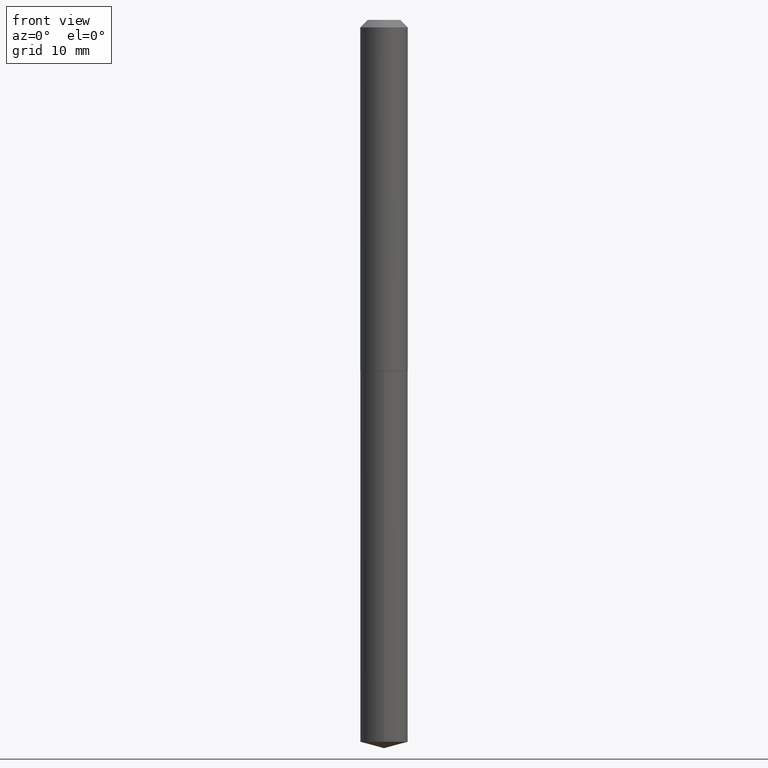
[diagram: clean part render]
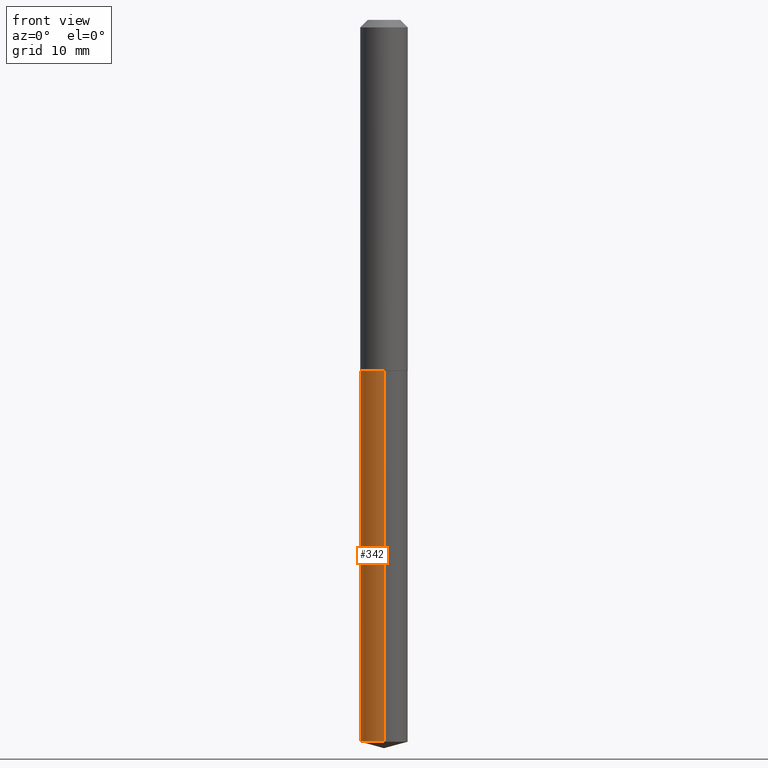
[diagram: same view with one face highlighted and labeled with its STEP entity id]
A machine part, front view. The second image highlights one B-rep face of the part: STEP entity #342.
In plain terms, the highlighted cylindrical surface (edge-blend (fillet) strip) has radius 2.4892 mm, axis along (-0, 0, 1).
Its self-contained STEP definition (entity closure, byte-faithful):
#11 = CIRCLE ( 'NONE', #66, 0.09800000000000003153 ) ;
#19 = DIRECTION ( 'NONE',  ( -6.982962677686266711E-15, -1.000000000000000000, 5.575199987069923245E-15 ) ) ;
#21 = DIRECTION ( 'NONE',  ( -2.433234783918762337E-29, 3.509001155045898110E-15, 1.000000000000000000 ) ) ;
#25 = CARTESIAN_POINT ( 'NONE',  ( 3.536147893743707559E-29, -5.048682015967188692E-15, -1.446000000000000174 ) ) ;
#40 = VECTOR ( 'NONE', #335, 39.37007874015748143 ) ;
#44 = LINE ( 'NONE', #354, #254 ) ;
#48 = CARTESIAN_POINT ( 'NONE',  ( 3.536147893743707559E-29, -5.048682015967188692E-15, -1.446000000000000174 ) ) ;
#66 = AXIS2_PLACEMENT_3D ( 'NONE', #388, #381, #19 ) ;
#79 = CYLINDRICAL_SURFACE ( 'NONE', #298, 0.09800000000000001765 ) ;
#104 = VERTEX_POINT ( 'NONE', #338 ) ;
#130 = LINE ( 'NONE', #215, #40 ) ;
#141 = ORIENTED_EDGE ( 'NONE', *, *, #333, .T. ) ;
#147 = ORIENTED_EDGE ( 'NONE', *, *, #260, .F. ) ;
#158 = VERTEX_POINT ( 'NONE', #247 ) ;
#168 = EDGE_CURVE ( 'NONE', #207, #104, #130, .T. ) ;
#195 = EDGE_CURVE ( 'NONE', #390, #158, #44, .T. ) ;
#198 = DIRECTION ( 'NONE',  ( -2.433234783918762337E-29, 3.509001155045898110E-15, 1.000000000000000000 ) ) ;
#202 = DIRECTION ( 'NONE',  ( -2.433234783918762337E-29, 3.509001155045898110E-15, 1.000000000000000000 ) ) ;
#207 = VERTEX_POINT ( 'NONE', #343 ) ;
#214 = EDGE_LOOP ( 'NONE', ( #328, #141, #313, #147 ) ) ;
#215 = CARTESIAN_POINT ( 'NONE',  ( -6.843303424132188479E-16, -0.09800000000000506917, -1.445999999999999730 ) ) ;
#217 = AXIS2_PLACEMENT_3D ( 'NONE', #25, #198, #324 ) ;
#225 = FACE_OUTER_BOUND ( 'NONE', #214, .T. ) ;
#247 = CARTESIAN_POINT ( 'NONE',  ( 6.963318810449712772E-16, 0.09799999999999495226, -1.446000000000000396 ) ) ;
#254 = VECTOR ( 'NONE', #202, 39.37007874015748143 ) ;
#255 = DIRECTION ( 'NONE',  ( -6.982962677686265922E-15, -1.000000000000000000, 2.787599993534962017E-15 ) ) ;
#260 = EDGE_CURVE ( 'NONE', #158, #104, #304, .T. ) ;
#262 = CARTESIAN_POINT ( 'NONE',  ( 6.963318810449713758E-16, 0.09799999999998967870, -2.973740979141750618 ) ) ;
#298 = AXIS2_PLACEMENT_3D ( 'NONE', #48, #21, #255 ) ;
#304 = CIRCLE ( 'NONE', #217, 0.09800000000000000377 ) ;
#313 = ORIENTED_EDGE ( 'NONE', *, *, #168, .T. ) ;
#324 = DIRECTION ( 'NONE',  ( -6.982962677686265922E-15, -1.000000000000000000, 2.787599993534962411E-15 ) ) ;
#328 = ORIENTED_EDGE ( 'NONE', *, *, #195, .F. ) ;
#333 = EDGE_CURVE ( 'NONE', #390, #207, #11, .T. ) ;
#335 = DIRECTION ( 'NONE',  ( -2.433234783918762337E-29, 3.509001155045898110E-15, 1.000000000000000000 ) ) ;
#338 = CARTESIAN_POINT ( 'NONE',  ( -6.843303424132187493E-16, -0.09800000000000505529, -1.445999999999999730 ) ) ;
#342 = ADVANCED_FACE ( 'NONE', ( #225 ), #79, .T. ) ;
#343 = CARTESIAN_POINT ( 'NONE',  ( -6.843303424131821659E-16, -0.09800000000001052314, -2.973740979141749285 ) ) ;
#354 = CARTESIAN_POINT ( 'NONE',  ( 6.963318810449335105E-16, 0.09799999999999496614, -1.446000000000000396 ) ) ;
#381 = DIRECTION ( 'NONE',  ( -2.433234783918762337E-29, 3.509001155045898110E-15, 1.000000000000000000 ) ) ;
#388 = CARTESIAN_POINT ( 'NONE',  ( 7.253500385009522041E-29, -1.040952687638653893E-14, -2.973740979141749730 ) ) ;
#390 = VERTEX_POINT ( 'NONE', #262 ) ;